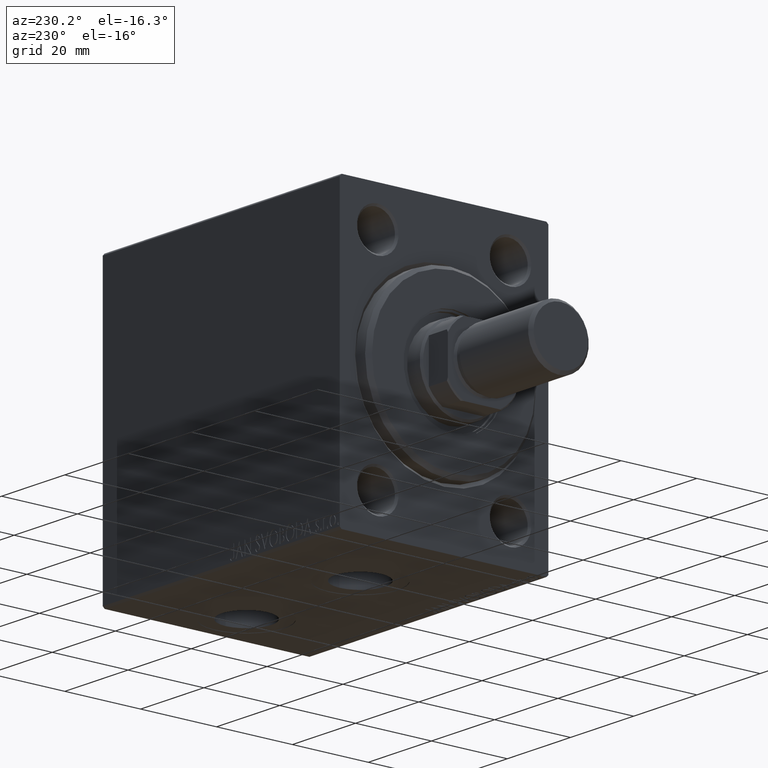
[diagram: clean part render]
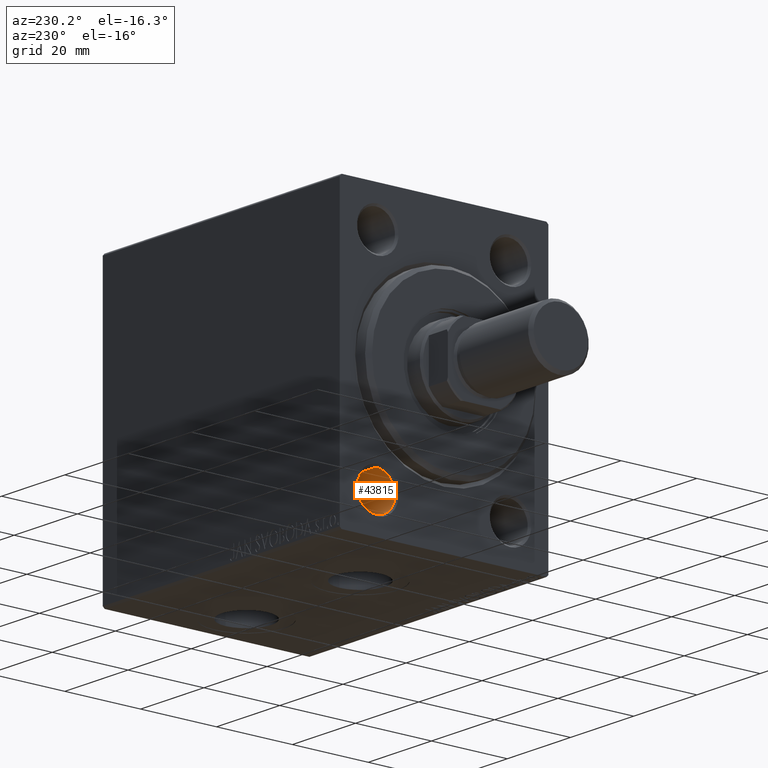
[diagram: same view with one face highlighted and labeled with its STEP entity id]
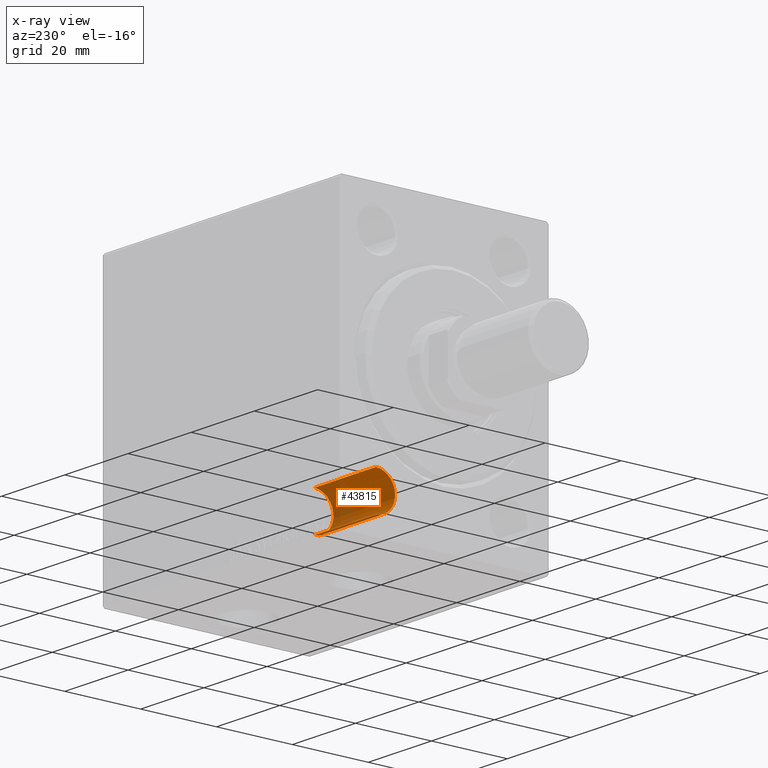
[diagram: x-ray of the same camera — body ghosted, the highlighted face saturated]
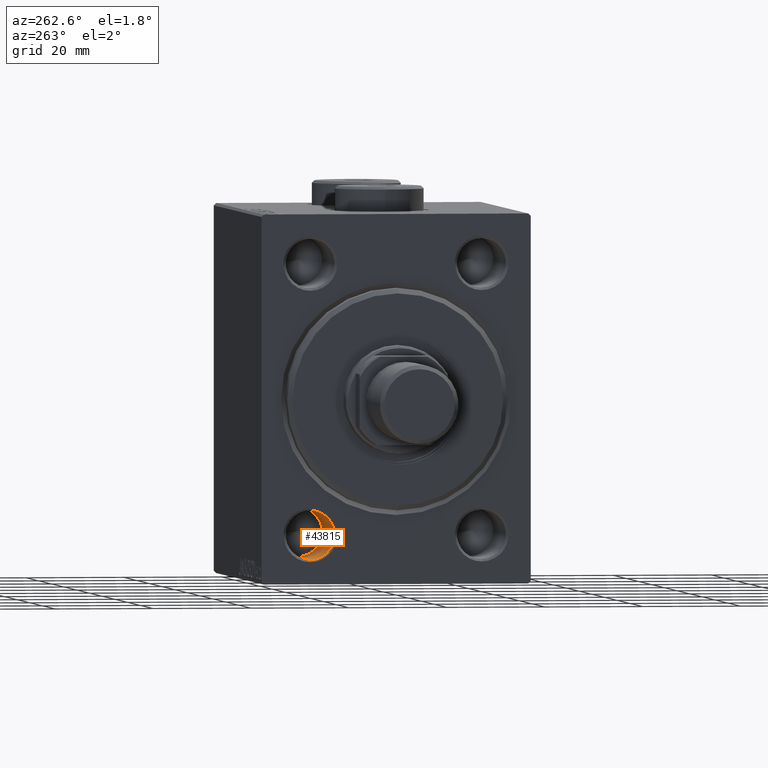
[diagram: same view with one face highlighted and labeled with its STEP entity id]
A machine part, auxiliary view. The second image highlights one B-rep face of the part: STEP entity #43815.
The next image is the same camera in x-ray: the body ghosted, the highlighted face saturated — about 37% of this face is hidden behind the body in this view.
A second angle (auxiliary view) of the same face is appended — the face is thin or edge-on in the first view.
In plain terms, the highlighted cylindrical surface (edge-blend (fillet) strip) has radius 5 mm, axis along (-1, -0, -0).
Its self-contained STEP definition (entity closure, byte-faithful):
#168 = CIRCLE ( 'NONE', #6830, 4.999999999999997335 ) ;
#1512 = CIRCLE ( 'NONE', #15606, 4.999999999999997335 ) ;
#2224 = CARTESIAN_POINT ( 'NONE',  ( 0.5000000000000247580, 17.50000000000000000, -22.50000000000000000 ) ) ;
#2592 = EDGE_CURVE ( 'NONE', #26344, #34427, #1512, .T. ) ;
#5157 = CARTESIAN_POINT ( 'NONE',  ( 20.00000000000000000, 17.50000000000000000, -27.49999999999999645 ) ) ;
#6830 = AXIS2_PLACEMENT_3D ( 'NONE', #5157, #40760, #19343 ) ;
#7937 = CARTESIAN_POINT ( 'NONE',  ( 20.00000000000000000, 17.50000000000000000, -22.50000000000000000 ) ) ;
#9271 = LINE ( 'NONE', #30915, #13928 ) ;
#9857 = VERTEX_POINT ( 'NONE', #7937 ) ;
#12773 = EDGE_CURVE ( 'NONE', #42589, #9857, #168, .T. ) ;
#12937 = ORIENTED_EDGE ( 'NONE', *, *, #12773, .F. ) ;
#13151 = VECTOR ( 'NONE', #16918, 1000.000000000000000 ) ;
#13928 = VECTOR ( 'NONE', #24153, 1000.000000000000000 ) ;
#14972 = ORIENTED_EDGE ( 'NONE', *, *, #45004, .F. ) ;
#15245 = DIRECTION ( 'NONE',  ( 0.000000000000000000, 0.000000000000000000, -1.000000000000000000 ) ) ;
#15606 = AXIS2_PLACEMENT_3D ( 'NONE', #26649, #18747, #15245 ) ;
#16918 = DIRECTION ( 'NONE',  ( -1.000000000000000000, -0.000000000000000000, -0.000000000000000000 ) ) ;
#18458 = CARTESIAN_POINT ( 'NONE',  ( 0.5000000000000247580, 17.50000000000000000, -32.49999999999999289 ) ) ;
#18747 = DIRECTION ( 'NONE',  ( -1.000000000000000000, 0.000000000000000000, 0.000000000000000000 ) ) ;
#19343 = DIRECTION ( 'NONE',  ( 0.000000000000000000, 0.000000000000000000, 1.000000000000000000 ) ) ;
#19911 = EDGE_LOOP ( 'NONE', ( #12937, #39343, #24980, #14972 ) ) ;
#20407 = DIRECTION ( 'NONE',  ( 0.000000000000000000, 0.000000000000000000, 1.000000000000000000 ) ) ;
#23454 = CARTESIAN_POINT ( 'NONE',  ( 0.000000000000000000, 17.50000000000000000, -27.49999999999999645 ) ) ;
#23900 = CYLINDRICAL_SURFACE ( 'NONE', #34001, 4.999999999999997335 ) ;
#24153 = DIRECTION ( 'NONE',  ( -1.000000000000000000, -0.000000000000000000, -0.000000000000000000 ) ) ;
#24383 = LINE ( 'NONE', #44868, #13151 ) ;
#24980 = ORIENTED_EDGE ( 'NONE', *, *, #2592, .T. ) ;
#26344 = VERTEX_POINT ( 'NONE', #18458 ) ;
#26649 = CARTESIAN_POINT ( 'NONE',  ( 0.5000000000000247580, 17.50000000000000000, -27.49999999999999645 ) ) ;
#27628 = DIRECTION ( 'NONE',  ( -1.000000000000000000, -0.000000000000000000, -0.000000000000000000 ) ) ;
#30432 = FACE_OUTER_BOUND ( 'NONE', #19911, .T. ) ;
#30915 = CARTESIAN_POINT ( 'NONE',  ( 0.000000000000000000, 17.50000000000000000, -22.50000000000000000 ) ) ;
#34001 = AXIS2_PLACEMENT_3D ( 'NONE', #23454, #27628, #20407 ) ;
#34427 = VERTEX_POINT ( 'NONE', #2224 ) ;
#38154 = CARTESIAN_POINT ( 'NONE',  ( 20.00000000000000000, 17.50000000000000000, -32.49999999999999289 ) ) ;
#39343 = ORIENTED_EDGE ( 'NONE', *, *, #44983, .T. ) ;
#40760 = DIRECTION ( 'NONE',  ( -1.000000000000000000, -0.000000000000000000, -0.000000000000000000 ) ) ;
#42589 = VERTEX_POINT ( 'NONE', #38154 ) ;
#43815 = ADVANCED_FACE ( 'NONE', ( #30432 ), #23900, .F. ) ;
#44868 = CARTESIAN_POINT ( 'NONE',  ( 0.000000000000000000, 17.50000000000000000, -32.49999999999999289 ) ) ;
#44983 = EDGE_CURVE ( 'NONE', #42589, #26344, #24383, .T. ) ;
#45004 = EDGE_CURVE ( 'NONE', #9857, #34427, #9271, .T. ) ;